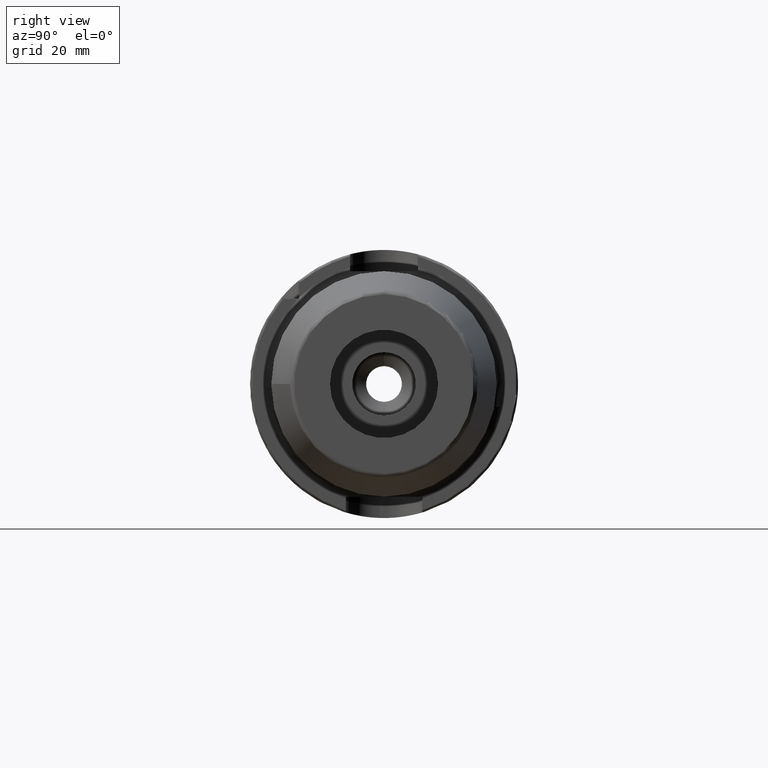
[diagram: clean part render]
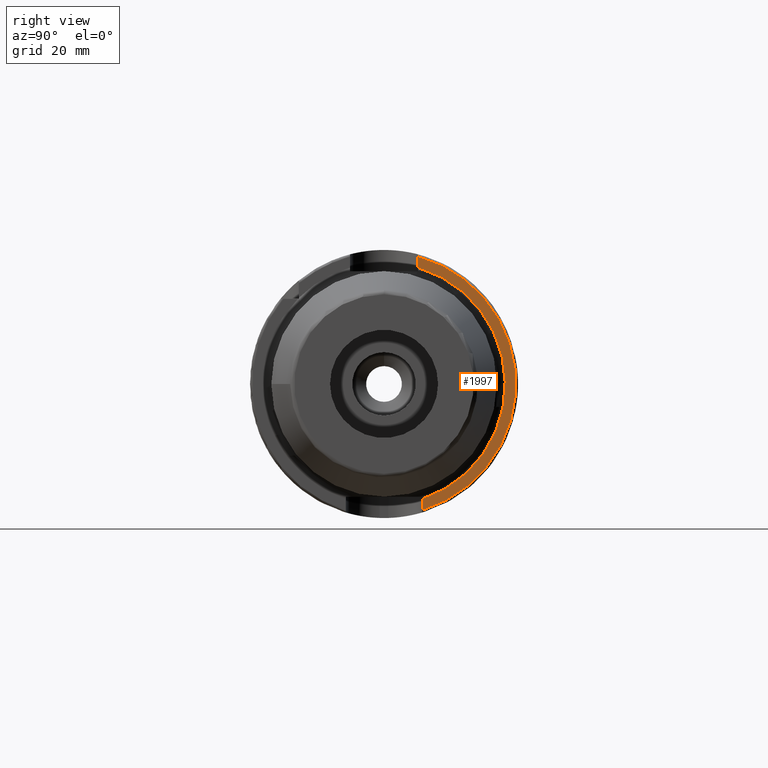
[diagram: same view with one face highlighted and labeled with its STEP entity id]
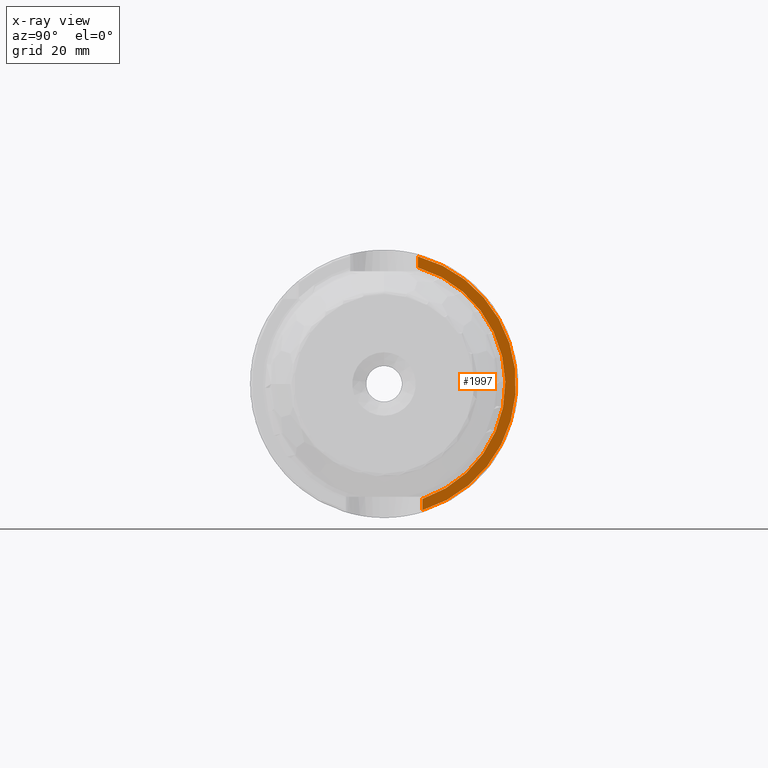
[diagram: x-ray of the same camera — body ghosted, the highlighted face saturated]
A machine part, right view. The second image highlights one B-rep face of the part: STEP entity #1997.
The next image is the same camera in x-ray: the body ghosted, the highlighted face saturated — about 0% of this face is hidden behind the body in this view.
In plain terms, the highlighted planar face has unit normal (1, 0, 0).
Its self-contained STEP definition (entity closure, byte-faithful):
#122=PLANE('',#2160);
#233=FACE_OUTER_BOUND('',#355,.T.);
#355=EDGE_LOOP('',(#1391,#1392,#1393,#1394));
#477=LINE('',#3114,#581);
#478=LINE('',#3117,#582);
#581=VECTOR('',#2460,10.);
#582=VECTOR('',#2463,10.);
#692=CIRCLE('',#2152,28.5);
#696=CIRCLE('',#2161,31.);
#825=VERTEX_POINT('',#3074);
#826=VERTEX_POINT('',#3079);
#831=VERTEX_POINT('',#3113);
#832=VERTEX_POINT('',#3115);
#1040=EDGE_CURVE('',#825,#826,#692,.T.);
#1049=EDGE_CURVE('',#825,#831,#477,.T.);
#1050=EDGE_CURVE('',#831,#832,#696,.T.);
#1051=EDGE_CURVE('',#832,#826,#478,.T.);
#1391=ORIENTED_EDGE('',*,*,#1040,.F.);
#1392=ORIENTED_EDGE('',*,*,#1049,.T.);
#1393=ORIENTED_EDGE('',*,*,#1050,.T.);
#1394=ORIENTED_EDGE('',*,*,#1051,.T.);
#1997=ADVANCED_FACE('',(#233),#122,.T.);
#2152=AXIS2_PLACEMENT_3D('',#3080,#2440,#2441);
#2160=AXIS2_PLACEMENT_3D('',#3112,#2458,#2459);
#2161=AXIS2_PLACEMENT_3D('',#3116,#2461,#2462);
#2440=DIRECTION('center_axis',(1.,0.,0.));
#2441=DIRECTION('ref_axis',(0.,1.,0.));
#2458=DIRECTION('center_axis',(1.,0.,0.));
#2459=DIRECTION('ref_axis',(0.,0.,-1.));
#2460=DIRECTION('',(0.,0.,-1.));
#2461=DIRECTION('center_axis',(1.,0.,0.));
#2462=DIRECTION('ref_axis',(0.,0.,-1.));
#2463=DIRECTION('',(0.,0.,-1.));
#3074=CARTESIAN_POINT('',(26.,9.,-27.0416345659799));
#3079=CARTESIAN_POINT('',(26.,8.,27.3541587331799));
#3080=CARTESIAN_POINT('Origin',(26.,0.,0.));
#3112=CARTESIAN_POINT('Origin',(26.,0.,0.));
#3113=CARTESIAN_POINT('',(26.,9.,-29.6647939483827));
#3114=CARTESIAN_POINT('',(26.,9.,-13.25));
#3115=CARTESIAN_POINT('',(26.,8.,29.9499582637439));
#3116=CARTESIAN_POINT('Origin',(26.,0.,0.));
#3117=CARTESIAN_POINT('',(26.,8.,13.25));